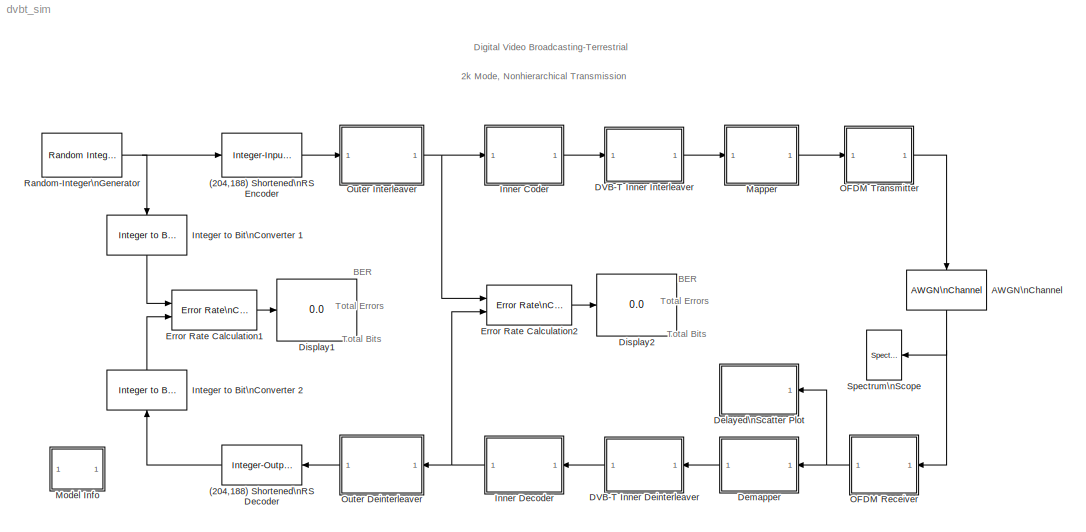
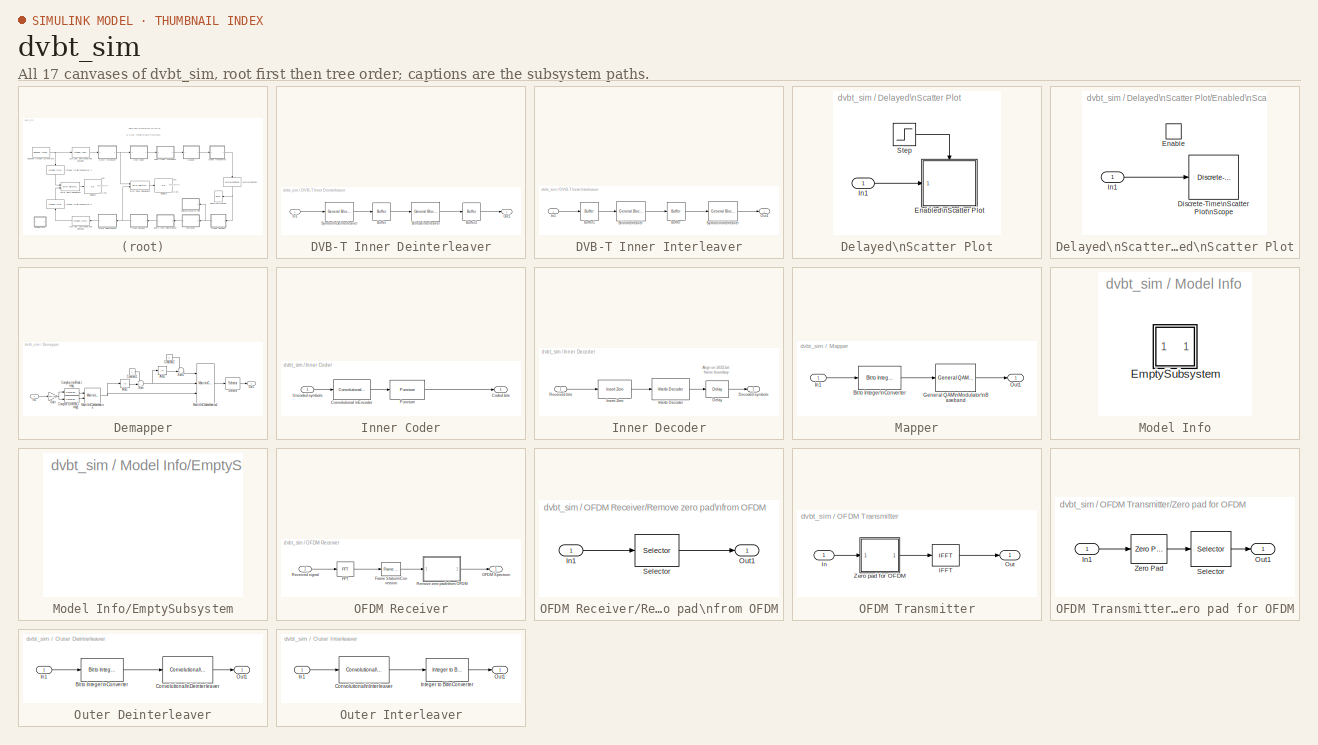
[diagram: thumbnail index - all 17 canvases of the model, root first then tree order]
MODEL dvbt_sim
KIND model
WORKSPACE source: external: M-Code  (data not in archive)
BLOCK [Reference] (204,188) Shortened\nRS Decoder  REF=commblkcod2/Integer-Output\nRS Decoder
  Ports = [1, 1]
  SourceBlock = commblkcod2/Integer-Output\nRS Decoder
  SourceType = Integer-Output RS Decoder
  genPoly = rsgenpoly(7,3)
  k = 188
  n = 204
  primPoly = [1 0 1 1]
  showNumErr = off
  specGenPoly = off
  specPrimPoly = off
BLOCK [Reference] (204,188) Shortened\nRS Encoder  REF=commblkcod2/Integer-Input\nRS Encoder
  Ports = [1, 1]
  SourceBlock = commblkcod2/Integer-Input\nRS Encoder
  SourceType = Integer-Input RS Encoder
  genPoly = rsgenpoly(7,3)
  k = 188
  n = 204
  primPoly = [1 0 1 1]
  specGenPoly = off
  specPrimPoly = off
BLOCK [Reference] AWGN\nChannel  REF=commchan2/AWGN\nChannel
  EbNodB = 10
  EsNodB = EbNodB+10*log10(log2(M))
  Ports = [1, 1]
  Ps = 1/2048
  SNRdB = 18.5
  ShowPortLabels = on
  SourceBlock = commchan2/AWGN\nChannel
  SourceType = AWGN Channel
  Tsym = Tsym
  bitsPerSym = 1
  noiseMode = Signal to noise ratio  (SNR)
  seed = 54321
  variance = 10^(-0.1*15)/(2048*2)
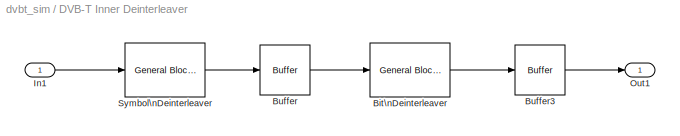
BLOCK [SubSystem] DVB-T Inner Deinterleaver
  MaskDisplay = disp('DVB-T\\nInner\\nDeinterleaver')
  MaskIconFrame = on
  MaskIconOpaque = on
  MaskIconRotate = none
  MaskIconUnits = autoscale
  MaskInitialization = fullILVec = [(1:126) ...\n (rem([0:125]+63,126) +1 + 126     ) ...\n (rem([0:125]+105,126)+1 + (2*126) ) ...\n (rem([0:125]+42,126) +1 + (3*126) ) ...\n (rem([0:125]+21,126) +1 + (4*126) ) ...\n (rem([0:125]+84,126) +1 + (5*126) )];
  MaskType = DVB-T Inner Deinterleaver
  MinAlgLoopOccurrences = off
  Ports = [1, 1]
  PropExecContextAcrossSSBoundary = on
  RTWSystemCode = Auto
  TreatAsAtomicUnit = off
BLOCK [Reference] DVB-T Inner Deinterleaver/Bit\nDeinterleaver  REF=commblkintrlv2/General Block\nDeinterleaver
  Ports = [1, 1]
  SourceBlock = commblkintrlv2/General Block\nDeinterleaver
  SourceType = General Block Deinterleaver
  elements = dvb_bit_int_table
BLOCK [Reference] DVB-T Inner Deinterleaver/Buffer  REF=dspbuff3/Buffer
  N = 756
  Ports = [1, 1]
  SourceBlock = dspbuff3/Buffer
  SourceType = Buffer
  V = 0
  ic = 0
BLOCK [Reference] DVB-T Inner Deinterleaver/Buffer3  REF=dspbuff3/Buffer
  N = 2176
  Ports = [1, 1]
  SourceBlock = dspbuff3/Buffer
  SourceType = Buffer
  V = 0
  ic = 0
BLOCK [Inport] DVB-T Inner Deinterleaver/In1
  IconDisplay = Port number
  LatchInput = off
BLOCK [Outport] DVB-T Inner Deinterleaver/Out1
  BusOutputAsStruct = off
  IconDisplay = Port number
BLOCK [Reference] DVB-T Inner Deinterleaver/Symbol\nDeinterleaver  REF=commblkintrlv2/General Block\nDeinterleaver
  Ports = [1, 1]
  SourceBlock = commblkintrlv2/General Block\nDeinterleaver
  SourceType = General Block Deinterleaver
  elements = dvb_sym_int_table
BLOCK [SubSystem] DVB-T Inner Interleaver
  MaskDisplay = disp('DVB-T\\nInner\\nInterleaver')
  MaskIconFrame = on
  MaskIconOpaque = on
  MaskIconRotate = none
  MaskIconUnits = autoscale
  MaskInitialization = fullILVec = [(1:126) ...\n (rem([0:125]+63,126) +1 + 126     ) ...\n (rem([0:125]+105,126)+1 + (2*126) ) ...\n (rem([0:125]+42,126) +1 + (3*126) ) ...\n (rem([0:125]+21,126) +1 + (4*126) ) ...\n (rem([0:125]+84,126) +1 + (5*126) )];
  MaskType = DVB-T Inner Interleaver
  MinAlgLoopOccurrences = off
  Ports = [1, 1]
  PropExecContextAcrossSSBoundary = on
  RTWSystemCode = Auto
  TreatAsAtomicUnit = off
BLOCK [Reference] DVB-T Inner Interleaver/Bit\nInterleaver  REF=commblkintrlv2/General Block\nInterleaver
  Ports = [1, 1]
  SourceBlock = commblkintrlv2/General Block\nInterleaver
  SourceType = General Block Interleaver
  elements = dvb_bit_int_table
BLOCK [Reference] DVB-T Inner Interleaver/Buffer  REF=dspbuff3/Buffer
  N = 9072
  Ports = [1, 1]
  SourceBlock = dspbuff3/Buffer
  SourceType = Buffer
  V = 0
  ic = 0
BLOCK [Reference] DVB-T Inner Interleaver/Buffer1  REF=dspbuff3/Buffer
  N = 756
  Ports = [1, 1]
  SourceBlock = dspbuff3/Buffer
  SourceType = Buffer
  V = 0
  ic = 0
BLOCK [Inport] DVB-T Inner Interleaver/In1
  IconDisplay = Port number
  LatchInput = off
BLOCK [Outport] DVB-T Inner Interleaver/Out1
  BusOutputAsStruct = off
  IconDisplay = Port number
BLOCK [Reference] DVB-T Inner Interleaver/Symbol\nInterleaver  REF=commblkintrlv2/General Block\nInterleaver
  Ports = [1, 1]
  SourceBlock = commblkintrlv2/General Block\nInterleaver
  SourceType = General Block Interleaver
  elements = dvb_sym_int_table
BLOCK [SubSystem] Delayed\nScatter Plot
  MaskDisplay = disp('Delayed\\nScatter Plot');
  MaskIconFrame = on
  MaskIconOpaque = on
  MaskIconRotate = none
  MaskIconUnits = autoscale
  MinAlgLoopOccurrences = off
  Ports = [1]
  PropExecContextAcrossSSBoundary = on
  RTWSystemCode = Auto
  TreatAsAtomicUnit = off
BLOCK [SubSystem] Delayed\nScatter Plot/Enabled\nScatter Plot
  MinAlgLoopOccurrences = off
  Ports = [1, 0, 1]
  PropExecContextAcrossSSBoundary = on
  RTWSystemCode = Auto
  TreatAsAtomicUnit = on
BLOCK [Reference] Delayed\nScatter Plot/Enabled\nScatter Plot/Discrete-Time\nScatter Plot\nScope  REF=commsink2/Discrete-Time\nScatter Plot\nScope
  AxisGrid = on
  FigPos = figposition([50    18    44    58])
  FrameNumber = off
  LineColors = b
  LineMarkers = .
  Ports = [1]
  ShowPortLabels = on
  SourceBlock = commsink2/Discrete-Time\nScatter Plot\nScope
  SourceType = Discrete-Time Scatter Plot Scope
  Tag = ScatterPlot
  block_type_ = scatter
  fading = off
  figTitle = Scatter Plot
  inphaseLabel = In-phase Amplitude
  numLinesMax = 50
  numNewFrames = 3000
  numTraces = 5000
  offsetEye = 0
  openScopeAtSimStart = on
  quadratureLabel = Quadrature Amplitude
  render = off
  sampPerSymb = 1
  xMax = 1.5
  xMin = -1.5
  yMax = 1.5
  yMin = -1.5
BLOCK [EnablePort] Delayed\nScatter Plot/Enabled\nScatter Plot/Enable
  Ports = []
BLOCK [Inport] Delayed\nScatter Plot/Enabled\nScatter Plot/In1
  IconDisplay = Port number
  LatchInput = off
BLOCK [Inport] Delayed\nScatter Plot/In1
  IconDisplay = Port number
  LatchInput = off
BLOCK [Step] Delayed\nScatter Plot/Step
  SampleTime = .000224
  Time = .001
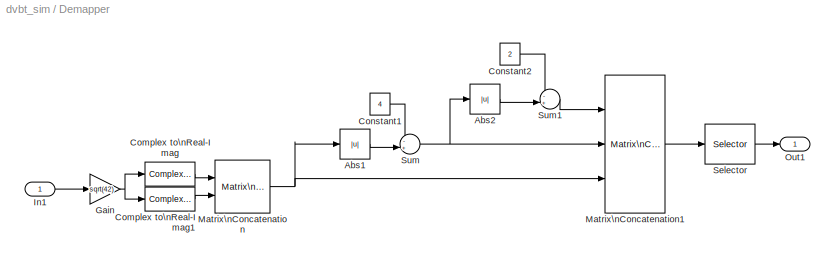
BLOCK [SubSystem] Demapper
  MaskDisplay = disp('DVB-T\\n64-QAM\\nDemapper')
  MaskIconFrame = on
  MaskIconOpaque = on
  MaskIconRotate = none
  MaskIconUnits = autoscale
  MaskType = DVB-T 64-QAM Demapper
  MinAlgLoopOccurrences = off
  Ports = [1, 1]
  PropExecContextAcrossSSBoundary = on
  RTWSystemCode = Auto
  TreatAsAtomicUnit = off
BLOCK [Abs] Demapper/Abs1
BLOCK [Abs] Demapper/Abs2
BLOCK [ComplexToRealImag] Demapper/Complex to\nReal-Imag
  Output = Imag
  Ports = [1, 1]
BLOCK [ComplexToRealImag] Demapper/Complex to\nReal-Imag1
  Output = Real
  Ports = [1, 1]
BLOCK [Constant] Demapper/Constant1
  Value = 4
BLOCK [Constant] Demapper/Constant2
  Value = 2
BLOCK [Gain] Demapper/Gain
  Gain = sqrt(42)
BLOCK [Inport] Demapper/In1
  IconDisplay = Port number
  LatchInput = off
BLOCK [Reference] Demapper/Matrix\nConcatenation  REF=simulink/Math\nOperations/Matrix\nConcatenation
  Ports = [2, 1]
  SourceBlock = simulink/Math\nOperations/Matrix\nConcatenation
  SourceType = Matrix Concatenation
  catMethod = Vertical
  numInports = 2
BLOCK [Reference] Demapper/Matrix\nConcatenation1  REF=simulink/Math\nOperations/Matrix\nConcatenation
  Ports = [3, 1]
  SourceBlock = simulink/Math\nOperations/Matrix\nConcatenation
  SourceType = Matrix Concatenation
  catMethod = Vertical
  numInports = 3
BLOCK [Outport] Demapper/Out1
  BusOutputAsStruct = off
  IconDisplay = Port number
BLOCK [Selector] Demapper/Selector
  Elements = reshape(reshape(1:9072,1512,6)',9072,1)
  InputPortWidth = 9072
  Ports = [1, 1]
BLOCK [Sum] Demapper/Sum
  IconShape = round
  Inputs = -+|
  Ports = [2, 1]
BLOCK [Sum] Demapper/Sum1
  IconShape = round
  Inputs = -+|
  Ports = [2, 1]
BLOCK [Display] Display1
  Decimation = 1
  Ports = [1]
BLOCK [Display] Display2
  Decimation = 1
  Ports = [1]
BLOCK [Reference] Error Rate Calculation1  REF=commsink2/Error Rate\nCalculation
  N = 188*17*8
  PMode = Port
  Ports = [2, 1]
  RsMode2 = off
  SourceBlock = commsink2/Error Rate\nCalculation
  SourceType = Error Rate Calculation
  WsName = e2
  cp_mode = Entire frame
  maxBits = 1e6
  numErr = 100
  st_delay = 0
  stop = off
  subframe = []
BLOCK [Reference] Error Rate Calculation2  REF=commsink2/Error Rate\nCalculation
  N = 1632*6
  PMode = Port
  Ports = [2, 1]
  RsMode2 = off
  SourceBlock = commsink2/Error Rate\nCalculation
  SourceType = Error Rate Calculation
  WsName = e1
  cp_mode = Entire frame
  maxBits = 1e6
  numErr = 100
  st_delay = 0
  stop = off
  subframe = []
BLOCK [SubSystem] Inner Coder
  MaskDisplay = disp('Rate 3/4<path>');
  MaskIconFrame = on
  MaskIconOpaque = on
  MaskIconRotate = none
  MaskIconUnits = autoscale
  MinAlgLoopOccurrences = off
  Ports = [1, 1]
  PropExecContextAcrossSSBoundary = on
  RTWSystemCode = Auto
  TreatAsAtomicUnit = off
BLOCK [Outport] Inner Coder/Coded bits
  BusOutputAsStruct = off
  IconDisplay = Port number
BLOCK [Reference] Inner Coder/Convolutional \nEncoder  REF=commcnvcod2/Convolutional\nEncoder
  Ports = [1, 1]
  SourceBlock = commcnvcod2/Convolutional\nEncoder
  SourceType = Convolutional Encoder
  reset = None
  trellis = poly2trellis(7, [171 133])
BLOCK [Reference] Inner Coder/Puncture  REF=commsequence2/Puncture
  Ports = [1, 1]
  SourceBlock = commsequence2/Puncture
  SourceType = Puncture
  punctureVector = [1 1 0 1 1 0]'
BLOCK [Inport] Inner Coder/Uncoded symbols
  IconDisplay = Port number
  LatchInput = off
BLOCK [SubSystem] Inner Decoder
  MaskDisplay = disp('Viterbi\\nDecoder')
  MaskIconFrame = on
  MaskIconOpaque = on
  MaskIconRotate = none
  MaskIconUnits = autoscale
  MinAlgLoopOccurrences = off
  Ports = [1, 1]
  PropExecContextAcrossSSBoundary = on
  RTWSystemCode = Auto
  TreatAsAtomicUnit = off
BLOCK [Outport] Inner Decoder/Decoded symbols
  BusOutputAsStruct = off
  IconDisplay = Port number
BLOCK [Reference] Inner Decoder/Delay  REF=dspsigops/Delay
  Ports = [1, 1]
  SourceBlock = dspsigops/Delay
  SourceType = Delay
  delay = 584+69
  dif_ic_for_ch = off
  dif_ic_for_dly = off
  dly_unit = Samples
  ic = 0
  ic_detail = off
  reset_popup = None
BLOCK [Reference] Inner Decoder/Insert Zero  REF=commsequence2/Insert Zero
  Ports = [1, 1]
  SourceBlock = commsequence2/Insert Zero
  SourceType = Insert Zero
  insertZeroVector = [1 1 0 1 1 0]'
BLOCK [Inport] Inner Decoder/Received bits
  IconDisplay = Port number
  LatchInput = off
BLOCK [Reference] Inner Decoder/Viterbi Decoder  REF=commcnvcod2/Viterbi Decoder
  Ports = [1, 1]
  SourceBlock = commcnvcod2/Viterbi Decoder
  SourceType = Viterbi Decoder
  dectype = Unquantized
  nsdecb = 4
  opmode = Continuous
  reset = off
  tbdepth = 136
  trellis = poly2trellis(7, [171 133])
BLOCK [Reference] Integer to Bit\nConverter 1  REF=commutil2/Integer to Bit\nConverter
  Ports = [1, 1]
  SourceBlock = commutil2/Integer to Bit\nConverter
  SourceType = Integer to Bit Converter
  nbits = 8
BLOCK [Reference] Integer to Bit\nConverter 2  REF=commutil2/Integer to Bit\nConverter
  Ports = [1, 1]
  SourceBlock = commutil2/Integer to Bit\nConverter
  SourceType = Integer to Bit Converter
  nbits = 8
BLOCK [SubSystem] Mapper
  MaskDisplay = disp('DVB-T\\n64-QAM\\nMapper')
  MaskIconFrame = on
  MaskIconOpaque = on
  MaskIconRotate = none
  MaskIconUnits = autoscale
  MaskType = DVB-T 64-QAM Mapper
  MinAlgLoopOccurrences = off
  Ports = [1, 1]
  PropExecContextAcrossSSBoundary = on
  RTWSystemCode = Auto
  TreatAsAtomicUnit = off
BLOCK [Reference] Mapper/Bit to Integer\nConverter  REF=commutil2/Bit to Integer\nConverter
  Ports = [1, 1]
  SourceBlock = commutil2/Bit to Integer\nConverter
  SourceType = Bit to Integer Converter
  nbits = 6
BLOCK [Reference] Mapper/General QAM\nModulator\nBaseband  REF=commdigbbndam2/General QAM\nModulator\nBaseband
  Ports = [1, 1]
  SigCon = dvbt_qam
  SourceBlock = commdigbbndam2/General QAM\nModulator\nBaseband
  SourceType = General QAM Modulator Baseband
  numSamp = 1
BLOCK [Inport] Mapper/In1
  IconDisplay = Port number
  LatchInput = off
BLOCK [Outport] Mapper/Out1
  BusOutputAsStruct = off
  IconDisplay = Port number
BLOCK [SubSystem] Model Info
  CopyFcn = slcm CopyBlock;
  DeleteFcn = slcm Cancel;
  InitFcn = slcm('UpdateAllCMBlocksInThisModelInit')
  LoadFcn = slcm LoadBlock;
  MaskCallbackString = ||||||||||||||||||||||||||||||
  MaskDescription = This block allows revision control information to be displayed within the model.
  MaskDisplay = text(str2num(LeftAlignmentValue), 0.5, MaskDisplayString, 'HorizontalAlignment', HorizontalTextAlignment)\n
  MaskEnableString = on,on,on,on,on,on,on,on,on,on,on,on,on,on,on,on,on,on,on,on,on,on,on,on,on,on,on,on,on,on,on
  MaskIconFrame = on
  MaskIconOpaque = on
  MaskIconRotate = none
  MaskIconUnits = normalized
  MaskPromptString = InitialSaveTempField|InitialBlockCM|BlockCM|Frame|SaveTempField|DisplayStringWithTags|MaskDisplayString|HorizontalTextAlignment|LeftAlignmentValue|SourceBlockDiagram|TagMaxNumber|CMTag1|CMTag2|CMTag3|CMTag4|CMTag5|CMTag6|CMTag7|CMTag8|CMTag9|CMTag10|CMTag11|CMTag12|CMTag13|CMTag14|CMTag15|CMTag16|CMTag17|CMTag18|CMTag19|CMTag20
  MaskSelfModifiable = on
  MaskStyleString = edit,edit,edit,edit,edit,edit,edit,edit,edit,edit,edit,edit,edit,edit,edit,edit,edit,edit,edit,edit,edit,edit,edit,edit,edit,edit,edit,edit,edit,edit,edit
  MaskTabNameString = ,,,,,,,,,,,,,,,,,,,,,,,,,,,,,,
  MaskToolTipString = on,on,on,on,on,on,on,on,on,on,on,on,on,on,on,on,on,on,on,on,on,on,on,on,on,on,on,on,on,on,on
  MaskTunableValueString = on,on,on,on,on,on,on,on,on,on,on,on,on,on,on,on,on,on,on,on,on,on,on,on,on,on,on,on,on,on,on
  MaskType = CMBlock
  MaskValueString = |none|none|on||Info|Info|Center|0.5|dvbt_sim|20||||||||||||||||||||
  MaskVarAliasString = ,,,,,,,,,,,,,,,,,,,,,,,,,,,,,,
  MaskVariables = InitialSaveTempField=&1;InitialBlockCM=&2;BlockCM=&3;Frame=&4;SaveTempField=&5;DisplayStringWithTags=&6;MaskDisplayString=&7;HorizontalTextAlignment=&8;LeftAlignmentValue=&9;SourceBlockDiagram=&10;TagMaxNumber=@11;CMTag1=&12;CMTag2=&13;CMTag3=&14;CMTag4=&15;CMTag5=&16;CMTag6=&17;CMTag7=&18;CMTag8=&19;CMTag9=&20;CMTag10=&21;CMTag11=&22;CMTag12=&23;CMTag13=&24;CMTag14=&25;CMTag15=&26;CMTag16=&27;CMT...<+45ch>
  MaskVisibilityString = off,off,off,off,off,off,off,off,off,off,off,off,off,off,off,off,off,off,off,off,off,off,off,off,off,off,off,off,off,off,off
  MinAlgLoopOccurrences = off
  NameChangeFcn = slcm Rename;
  OpenFcn = commdemohelp;
  Ports = []
  PostSaveFcn = slcm('UpdateAllCMBlocksInThisModel')
  PropExecContextAcrossSSBoundary = on
  RTWSystemCode = Auto
  TreatAsAtomicUnit = off
BLOCK [SubSystem] Model Info/EmptySubsystem
  MinAlgLoopOccurrences = off
  Ports = []
  PropExecContextAcrossSSBoundary = on
  RTWSystemCode = Auto
  TreatAsAtomicUnit = off
BLOCK [SubSystem] OFDM Receiver
  MaskDisplay = disp('OFDM\\nReceiver')
  MaskIconFrame = on
  MaskIconOpaque = on
  MaskIconRotate = none
  MaskIconUnits = autoscale
  MinAlgLoopOccurrences = off
  Ports = [1, 1]
  PropExecContextAcrossSSBoundary = on
  RTWSystemCode = Auto
  TreatAsAtomicUnit = off
BLOCK [Reference] OFDM Receiver/FFT  REF=dspxfrm3/FFT
  BitRevOrder = off
  CompMethod = Table lookup
  Ports = [1, 1]
  SkipNorm = off
  SourceBlock = dspxfrm3/FFT
  SourceType = FFT
  TableOpt = Speed
  accumFracLength = 24
  accumMode = Same as product output
  accumWordLength = 32
  additionalParams = off
  allowOverrides = on
  firstCoeffFracLength = 15
  firstCoeffMode = User-defined
  firstCoeffWordLength = 16
  outputFracLength = 12
  outputMode = Same as input
  outputWordLength = 16
  overflowMode = off
  prodOutputFracLength = 24
  prodOutputMode = Same as input
  prodOutputWordLength = 32
  roundingMode = Floor
BLOCK [Reference] OFDM Receiver/Frame Status\nConversion  REF=dspsigattribs/Frame Status\nConversion
  Ports = [1, 1]
  ShowPortLabels = off
  SourceBlock = dspsigattribs/Frame Status\nConversion
  SourceType = Frame Status Conversion
  growRefPort = off
  outframe = Frame-based
BLOCK [Outport] OFDM Receiver/OFDM Spectrum
  BusOutputAsStruct = off
  IconDisplay = Port number
BLOCK [Inport] OFDM Receiver/Received signal
  IconDisplay = Port number
  LatchInput = off
BLOCK [SubSystem] OFDM Receiver/Remove zero pad\nfrom OFDM
  MaskDisplay = disp('Remove zero\\npad from OFDM');
  MaskIconFrame = on
  MaskIconOpaque = on
  MaskIconRotate = none
  MaskIconUnits = autoscale
  MinAlgLoopOccurrences = off
  Ports = [1, 1]
  PropExecContextAcrossSSBoundary = on
  RTWSystemCode = Auto
  TreatAsAtomicUnit = off
BLOCK [Inport] OFDM Receiver/Remove zero pad\nfrom OFDM/In1
  IconDisplay = Port number
  LatchInput = off
BLOCK [Outport] OFDM Receiver/Remove zero pad\nfrom OFDM/Out1
  BusOutputAsStruct = off
  IconDisplay = Port number
BLOCK [Selector] OFDM Receiver/Remove zero pad\nfrom OFDM/Selector
  Elements = [1:756 1293:2048]
  InputPortWidth = 2048
  Ports = [1, 1]
BLOCK [SubSystem] OFDM Transmitter
  MaskDisplay = disp('OFDM\\nTransmitter')
  MaskIconFrame = on
  MaskIconOpaque = on
  MaskIconRotate = none
  MaskIconUnits = autoscale
  MinAlgLoopOccurrences = off
  Ports = [1, 1]
  PropExecContextAcrossSSBoundary = on
  RTWSystemCode = Auto
  TreatAsAtomicUnit = off
BLOCK [Reference] OFDM Transmitter/IFFT  REF=dspxfrm3/IFFT
  BitRevOrder = off
  CompMethod = Table lookup
  Ports = [1, 1]
  SkipNorm = off
  SourceBlock = dspxfrm3/IFFT
  SourceType = IFFT
  TableOpt = Speed
  accumFracLength = 24
  accumMode = Same as product output
  accumWordLength = 32
  additionalParams = off
  allowOverrides = on
  cs_in = off
  firstCoeffFracLength = 15
  firstCoeffMode = User-defined
  firstCoeffWordLength = 16
  mode = Complex
  outputFracLength = 12
  outputMode = Same as input
  outputWordLength = 16
  overflowMode = off
  prodOutputFracLength = 24
  prodOutputMode = Same as input
  prodOutputWordLength = 32
  roundingMode = Floor
BLOCK [Inport] OFDM Transmitter/In
  IconDisplay = Port number
  LatchInput = off
BLOCK [Outport] OFDM Transmitter/Out
  BusOutputAsStruct = off
  IconDisplay = Port number
BLOCK [SubSystem] OFDM Transmitter/Zero pad for OFDM
  MaskDisplay = disp('Zero pad\\nfor OFDM');
  MaskIconFrame = on
  MaskIconOpaque = on
  MaskIconRotate = none
  MaskIconUnits = autoscale
  MinAlgLoopOccurrences = off
  Ports = [1, 1]
  PropExecContextAcrossSSBoundary = on
  RTWSystemCode = Auto
  TreatAsAtomicUnit = off
BLOCK [Inport] OFDM Transmitter/Zero pad for OFDM/In1
  IconDisplay = Port number
  LatchInput = off
BLOCK [Outport] OFDM Transmitter/Zero pad for OFDM/Out1
  BusOutputAsStruct = off
  IconDisplay = Port number
BLOCK [Selector] OFDM Transmitter/Zero pad for OFDM/Selector
  Elements = [1:756 1513:2048  757:1512]
  InputPortWidth = 2048
  Ports = [1, 1]
BLOCK [Reference] OFDM Transmitter/Zero pad for OFDM/Zero Pad  REF=dspsigops/Zero Pad
  Ports = [1, 1]
  SourceBlock = dspsigops/Zero Pad
  SourceType = Zero Pad
  numOutCols = 1
  numOutRows = 2048
  padNumOutColsSpecMethod = User-specified
  padNumOutRowsSpecMethod = User-specified
  padSigAt = End
  trunc_flag = None
  zpadAlong = Columns
BLOCK [SubSystem] Outer Deinterleaver
  MaskDisplay = disp('Convolutional\\nDeinterleaver\\nI=12')
  MaskIconFrame = on
  MaskIconOpaque = on
  MaskIconRotate = none
  MaskIconUnits = autoscale
  MaskType = Convolutional Deinterleaver
  MinAlgLoopOccurrences = off
  Ports = [1, 1]
  PropExecContextAcrossSSBoundary = on
  RTWSystemCode = Auto
  TreatAsAtomicUnit = off
BLOCK [Reference] Outer Deinterleaver/Bit to Integer\nConverter  REF=commutil2/Bit to Integer\nConverter
  Ports = [1, 1]
  SourceBlock = commutil2/Bit to Integer\nConverter
  SourceType = Bit to Integer Converter
  nbits = 8
BLOCK [Reference] Outer Deinterleaver/Convolutional\nDeinterleaver  REF=commcnvintrlv2/Convolutional\nDeinterleaver
  B = 17
  N = 12
  Ports = [1, 1]
  ShowPortLabels = on
  SourceBlock = commcnvintrlv2/Convolutional\nDeinterleaver
  SourceType = Convolutional Deinterleaver
  ic = 0
BLOCK [Inport] Outer Deinterleaver/In1
  IconDisplay = Port number
  LatchInput = off
BLOCK [Outport] Outer Deinterleaver/Out1
  BusOutputAsStruct = off
  IconDisplay = Port number
BLOCK [SubSystem] Outer Interleaver
  MaskDisplay = disp('Convolutional\\nInterleaver\\nI=12')
  MaskIconFrame = on
  MaskIconOpaque = on
  MaskIconRotate = none
  MaskIconUnits = autoscale
  MaskType = Convolutional Interleaver
  MinAlgLoopOccurrences = off
  Ports = [1, 1]
  PropExecContextAcrossSSBoundary = on
  RTWSystemCode = Auto
  TreatAsAtomicUnit = off
BLOCK [Reference] Outer Interleaver/Convolutional\nInterleaver  REF=commcnvintrlv2/Convolutional\nInterleaver
  B = 17
  N = 12
  Ports = [1, 1]
  ShowPortLabels = on
  SourceBlock = commcnvintrlv2/Convolutional\nInterleaver
  SourceType = Convolutional Interleaver
  ic = 0
BLOCK [Inport] Outer Interleaver/In1
  IconDisplay = Port number
  LatchInput = off
BLOCK [Reference] Outer Interleaver/Integer to Bit\nConverter  REF=commutil2/Integer to Bit\nConverter
  Ports = [1, 1]
  SourceBlock = commutil2/Integer to Bit\nConverter
  SourceType = Integer to Bit Converter
  nbits = 8
BLOCK [Outport] Outer Interleaver/Out1
  BusOutputAsStruct = off
  IconDisplay = Port number
BLOCK [Reference] Random-Integer\nGenerator  REF=commrandsrc2/Random Integer\nGenerator
  Ports = [0, 1]
  ShowPortLabels = on
  SourceBlock = commrandsrc2/Random Integer\nGenerator
  SourceType = Random Integer Generator
  Ts = Ts
  frameBased = on
  mul = 256
  orient = off
  sampPerFrame = 188
  seed = 1234573
BLOCK [Reference] Spectrum\nScope  REF=dspsnks4/Spectrum\nScope
  AxisGrid = on
  AxisLegend = off
  AxisProperties = off
  AxisZoom = off
  BufferSize = 128
  DisplayProperties = on
  Domain = Frequency
  FFTlength = 128
  FigPos = figposition([9    38    30    30])
  FrameNumber = off
  HorizSpan = 1
  InheritXIncr = on
  LineProperties = off
  Memory = off
  OpenScopeAtSimStart = on
  OpenScopeImmediately = off
  Overlap = 64
  Ports = [1]
  ScopeProperties = off
  ShowPortLabels = off
  SourceBlock = dspsnks4/Spectrum\nScope
  SourceType = Spectrum Scope
  UseBuffer = off
  XIncr = 1.0
  XLabel = Samples
  XRange = [-Fs/2...Fs/2]
  XUnits = Hertz
  YLabel = Magnitude, dB
  YMax = 20
  YMin = -100
  YUnits = dB
  inpFftLenInherit = off
  numAvg = 2
ANNOTATION (root): 2k Mode, Nonhierarchical Transmission
ANNOTATION (root): BER
ANNOTATION (root): Digital Video Broadcasting-Terrestrial
ANNOTATION (root): Total Bits
ANNOTATION (root): Total Errors
ANNOTATION Inner Decoder: Align on 1632-bit \nframe boundary
LINE (204,188) Shortened\nRS Decoder:1 -> Integer to Bit\nConverter 2:1
LINE (204,188) Shortened\nRS Encoder:1 -> Outer Interleaver:1
NET AWGN\nChannel:1 -> OFDM Receiver:1, Spectrum\nScope:1
LINE DVB-T Inner Deinterleaver/Bit\nDeinterleaver:1 -> DVB-T Inner Deinterleaver/Buffer3:1
LINE DVB-T Inner Deinterleaver/Buffer3:1 -> DVB-T Inner Deinterleaver/Out1:1
LINE DVB-T Inner Deinterleaver/Buffer:1 -> DVB-T Inner Deinterleaver/Bit\nDeinterleaver:1
LINE DVB-T Inner Deinterleaver/In1:1 -> DVB-T Inner Deinterleaver/Symbol\nDeinterleaver:1
LINE DVB-T Inner Deinterleaver/Symbol\nDeinterleaver:1 -> DVB-T Inner Deinterleaver/Buffer:1
LINE DVB-T Inner Deinterleaver:1 -> Inner Decoder:1
LINE DVB-T Inner Interleaver/Bit\nInterleaver:1 -> DVB-T Inner Interleaver/Buffer:1
LINE DVB-T Inner Interleaver/Buffer1:1 -> DVB-T Inner Interleaver/Bit\nInterleaver:1
LINE DVB-T Inner Interleaver/Buffer:1 -> DVB-T Inner Interleaver/Symbol\nInterleaver:1
LINE DVB-T Inner Interleaver/In1:1 -> DVB-T Inner Interleaver/Buffer1:1
LINE DVB-T Inner Interleaver/Symbol\nInterleaver:1 -> DVB-T Inner Interleaver/Out1:1
LINE DVB-T Inner Interleaver:1 -> Mapper:1
LINE Delayed\nScatter Plot/Enabled\nScatter Plot/In1:1 -> Delayed\nScatter Plot/Enabled\nScatter Plot/Discrete-Time\nScatter Plot\nScope:1
LINE Delayed\nScatter Plot/In1:1 -> Delayed\nScatter Plot/Enabled\nScatter Plot:1
LINE Delayed\nScatter Plot/Step:1 -> Delayed\nScatter Plot/Enabled\nScatter Plot:enable
LINE Demapper/Abs1:1 -> Demapper/Sum:2
LINE Demapper/Abs2:1 -> Demapper/Sum1:2
LINE Demapper/Complex to\nReal-Imag1:1 -> Demapper/Matrix\nConcatenation:2
LINE Demapper/Complex to\nReal-Imag:1 -> Demapper/Matrix\nConcatenation:1
LINE Demapper/Constant1:1 -> Demapper/Sum:1
LINE Demapper/Constant2:1 -> Demapper/Sum1:1
NET Demapper/Gain:1 -> Demapper/Complex to\nReal-Imag1:1, Demapper/Complex to\nReal-Imag:1
LINE Demapper/In1:1 -> Demapper/Gain:1
LINE Demapper/Matrix\nConcatenation1:1 -> Demapper/Selector:1
NET Demapper/Matrix\nConcatenation:1 -> Demapper/Abs1:1, Demapper/Matrix\nConcatenation1:3
LINE Demapper/Selector:1 -> Demapper/Out1:1
LINE Demapper/Sum1:1 -> Demapper/Matrix\nConcatenation1:1
NET Demapper/Sum:1 -> Demapper/Abs2:1, Demapper/Matrix\nConcatenation1:2
LINE Demapper:1 -> DVB-T Inner Deinterleaver:1
LINE Error Rate Calculation1:1 -> Display1:1
LINE Error Rate Calculation2:1 -> Display2:1
LINE Inner Coder/Convolutional \nEncoder:1 -> Inner Coder/Puncture:1
LINE Inner Coder/Puncture:1 -> Inner Coder/Coded bits:1
LINE Inner Coder/Uncoded symbols:1 -> Inner Coder/Convolutional \nEncoder:1
LINE Inner Coder:1 -> DVB-T Inner Interleaver:1
LINE Inner Decoder/Delay:1 -> Inner Decoder/Decoded symbols:1
LINE Inner Decoder/Insert Zero:1 -> Inner Decoder/Viterbi Decoder:1
LINE Inner Decoder/Received bits:1 -> Inner Decoder/Insert Zero:1
LINE Inner Decoder/Viterbi Decoder:1 -> Inner Decoder/Delay:1
NET Inner Decoder:1 -> Error Rate Calculation2:2, Outer Deinterleaver:1
LINE Integer to Bit\nConverter 1:1 -> Error Rate Calculation1:1
LINE Integer to Bit\nConverter 2:1 -> Error Rate Calculation1:2
LINE Mapper/Bit to Integer\nConverter:1 -> Mapper/General QAM\nModulator\nBaseband:1
LINE Mapper/General QAM\nModulator\nBaseband:1 -> Mapper/Out1:1
LINE Mapper/In1:1 -> Mapper/Bit to Integer\nConverter:1
LINE Mapper:1 -> OFDM Transmitter:1
LINE OFDM Receiver/FFT:1 -> OFDM Receiver/Frame Status\nConversion:1
LINE OFDM Receiver/Frame Status\nConversion:1 -> OFDM Receiver/Remove zero pad\nfrom OFDM:1
LINE OFDM Receiver/Received signal:1 -> OFDM Receiver/FFT:1
LINE OFDM Receiver/Remove zero pad\nfrom OFDM/In1:1 -> OFDM Receiver/Remove zero pad\nfrom OFDM/Selector:1
LINE OFDM Receiver/Remove zero pad\nfrom OFDM/Selector:1 -> OFDM Receiver/Remove zero pad\nfrom OFDM/Out1:1
LINE OFDM Receiver/Remove zero pad\nfrom OFDM:1 -> OFDM Receiver/OFDM Spectrum:1
NET OFDM Receiver:1 -> Delayed\nScatter Plot:1, Demapper:1
LINE OFDM Transmitter/IFFT:1 -> OFDM Transmitter/Out:1
LINE OFDM Transmitter/In:1 -> OFDM Transmitter/Zero pad for OFDM:1
LINE OFDM Transmitter/Zero pad for OFDM/In1:1 -> OFDM Transmitter/Zero pad for OFDM/Zero Pad:1
LINE OFDM Transmitter/Zero pad for OFDM/Selector:1 -> OFDM Transmitter/Zero pad for OFDM/Out1:1
LINE OFDM Transmitter/Zero pad for OFDM/Zero Pad:1 -> OFDM Transmitter/Zero pad for OFDM/Selector:1
LINE OFDM Transmitter/Zero pad for OFDM:1 -> OFDM Transmitter/IFFT:1
LINE OFDM Transmitter:1 -> AWGN\nChannel:1
LINE Outer Deinterleaver/Bit to Integer\nConverter:1 -> Outer Deinterleaver/Convolutional\nDeinterleaver:1
LINE Outer Deinterleaver/Convolutional\nDeinterleaver:1 -> Outer Deinterleaver/Out1:1
LINE Outer Deinterleaver/In1:1 -> Outer Deinterleaver/Bit to Integer\nConverter:1
LINE Outer Deinterleaver:1 -> (204,188) Shortened\nRS Decoder:1
LINE Outer Interleaver/Convolutional\nInterleaver:1 -> Outer Interleaver/Integer to Bit\nConverter:1
LINE Outer Interleaver/In1:1 -> Outer Interleaver/Convolutional\nInterleaver:1
LINE Outer Interleaver/Integer to Bit\nConverter:1 -> Outer Interleaver/Out1:1
NET Outer Interleaver:1 -> Error Rate Calculation2:1, Inner Coder:1
NET Random-Integer\nGenerator:1 -> (204,188) Shortened\nRS Encoder:1, Integer to Bit\nConverter 1:1
note: NET lines group one-source signal fan-out (src -> all destinations, sorted); 1:1 wires keep LINE
note: 1 file-system path scrubbed to <path> (not preserved elsewhere — flat text is the only slx artifact)
